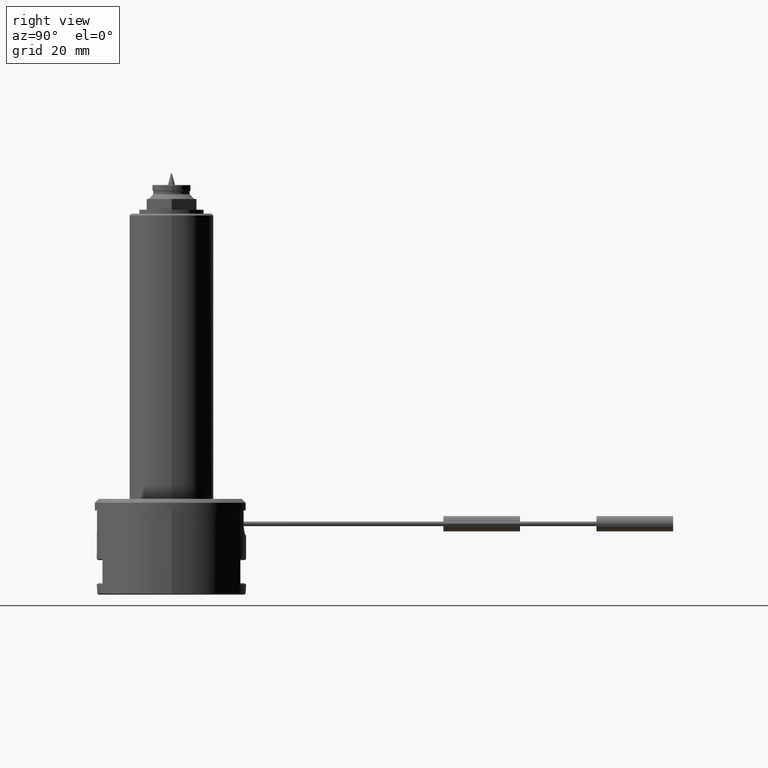
[diagram: clean part render]
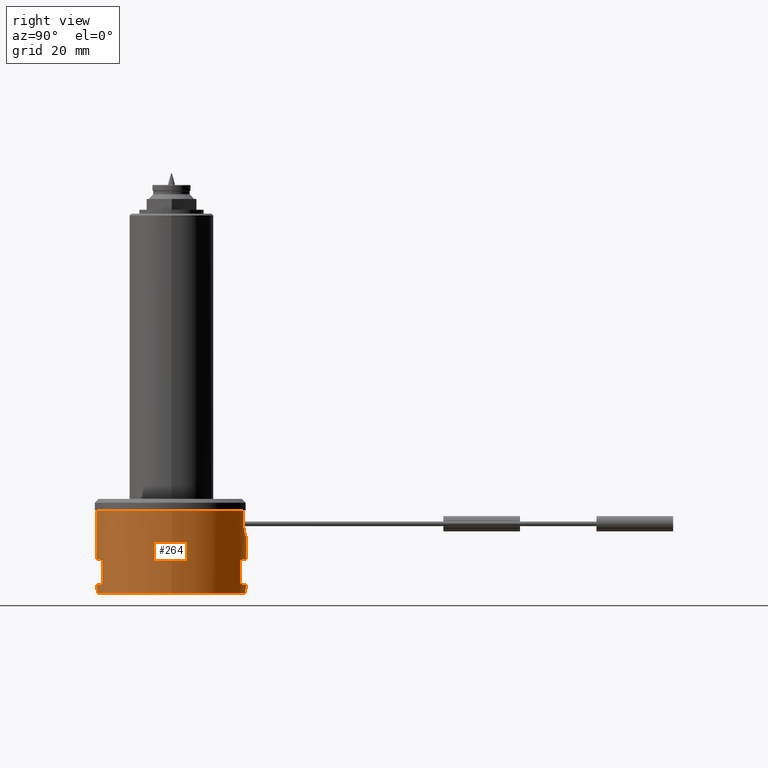
[diagram: same view with one face highlighted and labeled with its STEP entity id]
A machine part, right view. The second image highlights one B-rep face of the part: STEP entity #264.
In plain terms, the highlighted cylindrical surface (bore or boss wall) has radius 19.5 mm, axis along (0, 0, 1).
Its self-contained STEP definition (entity closure, byte-faithful):
#47=CYLINDRICAL_SURFACE('',#1219,19.5);
#114=LINE('',#2086,#158);
#115=LINE('',#2098,#159);
#117=LINE('',#2117,#161);
#119=LINE('',#2132,#163);
#122=LINE('',#2156,#166);
#123=LINE('',#2191,#167);
#158=VECTOR('',#1455,1.);
#159=VECTOR('',#1456,1.);
#161=VECTOR('',#1468,1.);
#163=VECTOR('',#1470,1.);
#166=VECTOR('',#1487,1.);
#167=VECTOR('',#1488,1.);
#264=ADVANCED_FACE('',(#385,#386,#387,#388),#47,.T.);
#339=B_SPLINE_CURVE_WITH_KNOTS('',3,(#2158,#2159,#2160,#2161,#2162,#2163,
#2164,#2165,#2166,#2167,#2168,#2169,#2170,#2171,#2172,#2173),
 .UNSPECIFIED.,.F.,.F.,(4,3,3,3,3,4),(0.,0.208859270447399,0.417456296238441,
0.630055906062743,0.847987775070674,1.),.UNSPECIFIED.);
#340=B_SPLINE_CURVE_WITH_KNOTS('',3,(#2174,#2175,#2176,#2177,#2178,#2179,
#2180,#2181,#2182,#2183,#2184,#2185,#2186,#2187,#2188,#2189),
 .UNSPECIFIED.,.F.,.F.,(4,3,3,3,3,4),(0.,0.215976202929395,0.431772849622374,
0.65007420206776,0.867184707585039,1.),.UNSPECIFIED.);
#385=FACE_BOUND('',#473,.T.);
#386=FACE_BOUND('',#474,.T.);
#387=FACE_BOUND('',#475,.T.);
#388=FACE_BOUND('',#476,.T.);
#473=EDGE_LOOP('',(#673));
#474=EDGE_LOOP('',(#674,#675,#676,#677,#678,#679));
#475=EDGE_LOOP('',(#680,#681,#682,#683));
#476=EDGE_LOOP('',(#684,#685,#686,#687));
#673=ORIENTED_EDGE('',*,*,#1024,.T.);
#674=ORIENTED_EDGE('',*,*,#1025,.F.);
#675=ORIENTED_EDGE('',*,*,#1026,.T.);
#676=ORIENTED_EDGE('',*,*,#1027,.T.);
#677=ORIENTED_EDGE('',*,*,#1021,.T.);
#678=ORIENTED_EDGE('',*,*,#1028,.T.);
#679=ORIENTED_EDGE('',*,*,#1029,.T.);
#680=ORIENTED_EDGE('',*,*,#1030,.T.);
#681=ORIENTED_EDGE('',*,*,#1017,.T.);
#682=ORIENTED_EDGE('',*,*,#1031,.T.);
#683=ORIENTED_EDGE('',*,*,#1013,.T.);
#684=ORIENTED_EDGE('',*,*,#1007,.F.);
#685=ORIENTED_EDGE('',*,*,#1032,.T.);
#686=ORIENTED_EDGE('',*,*,#1004,.F.);
#687=ORIENTED_EDGE('',*,*,#1033,.T.);
#880=VERTEX_POINT('',#2087);
#881=VERTEX_POINT('',#2088);
#882=VERTEX_POINT('',#2097);
#883=VERTEX_POINT('',#2099);
#887=VERTEX_POINT('',#2118);
#888=VERTEX_POINT('',#2119);
#891=VERTEX_POINT('',#2131);
#892=VERTEX_POINT('',#2133);
#893=VERTEX_POINT('',#2146);
#894=VERTEX_POINT('',#2147);
#895=VERTEX_POINT('',#2152);
#896=VERTEX_POINT('',#2154);
#897=VERTEX_POINT('',#2155);
#898=VERTEX_POINT('',#2157);
#899=VERTEX_POINT('',#2190);
#1004=EDGE_CURVE('',#880,#881,#114,.T.);
#1007=EDGE_CURVE('',#882,#883,#115,.T.);
#1013=EDGE_CURVE('',#887,#888,#117,.T.);
#1017=EDGE_CURVE('',#892,#891,#119,.T.);
#1021=EDGE_CURVE('',#893,#894,#1105,.T.);
#1024=EDGE_CURVE('',#895,#895,#1106,.T.);
#1025=EDGE_CURVE('',#896,#897,#1107,.T.);
#1026=EDGE_CURVE('',#896,#898,#122,.T.);
#1027=EDGE_CURVE('',#898,#893,#339,.T.);
#1028=EDGE_CURVE('',#894,#899,#340,.T.);
#1029=EDGE_CURVE('',#899,#897,#123,.T.);
#1030=EDGE_CURVE('',#888,#892,#1108,.T.);
#1031=EDGE_CURVE('',#891,#887,#1109,.T.);
#1032=EDGE_CURVE('',#882,#881,#1110,.T.);
#1033=EDGE_CURVE('',#880,#883,#1111,.T.);
#1105=CIRCLE('',#1211,19.5);
#1106=CIRCLE('',#1213,19.5);
#1107=CIRCLE('',#1214,19.5000000000001);
#1108=CIRCLE('',#1215,19.5);
#1109=CIRCLE('',#1216,19.5);
#1110=CIRCLE('',#1217,19.5);
#1111=CIRCLE('',#1218,19.5);
#1211=AXIS2_PLACEMENT_3D('',#2145,#1477,#1478);
#1213=AXIS2_PLACEMENT_3D('',#2151,#1483,#1484);
#1214=AXIS2_PLACEMENT_3D('',#2153,#1485,#1486);
#1215=AXIS2_PLACEMENT_3D('',#2192,#1489,#1490);
#1216=AXIS2_PLACEMENT_3D('',#2193,#1491,#1492);
#1217=AXIS2_PLACEMENT_3D('',#2194,#1493,#1494);
#1218=AXIS2_PLACEMENT_3D('',#2195,#1495,#1496);
#1219=AXIS2_PLACEMENT_3D('',#2196,#1497,#1498);
#1455=DIRECTION('',(0.,0.,1.));
#1456=DIRECTION('',(0.,0.,-1.));
#1468=DIRECTION('',(0.,0.,1.));
#1470=DIRECTION('',(0.,0.,-1.));
#1477=DIRECTION('',(0.,0.,-1.));
#1478=DIRECTION('',(-1.,0.,0.));
#1483=DIRECTION('',(0.,0.,1.));
#1484=DIRECTION('',(1.,0.,0.));
#1485=DIRECTION('',(0.,0.,1.));
#1486=DIRECTION('',(1.,0.,0.));
#1487=DIRECTION('',(0.,0.,-1.));
#1488=DIRECTION('',(0.,0.,1.));
#1489=DIRECTION('',(0.,0.,1.));
#1490=DIRECTION('',(1.,0.,0.));
#1491=DIRECTION('',(0.,0.,-1.));
#1492=DIRECTION('',(-1.,0.,0.));
#1493=DIRECTION('',(0.,0.,1.));
#1494=DIRECTION('',(-1.,0.,0.));
#1495=DIRECTION('',(0.,0.,-1.));
#1496=DIRECTION('',(1.,0.,0.));
#1497=DIRECTION('',(0.,0.,1.));
#1498=DIRECTION('',(1.,0.,0.));
#2086=CARTESIAN_POINT('',(-7.50000000000002,18.,0.));
#2087=CARTESIAN_POINT('',(-7.50000000000002,18.,2.69999999999999));
#2088=CARTESIAN_POINT('',(-7.50000000000002,18.,9.29999999998456));
#2097=CARTESIAN_POINT('',(7.50000000000002,18.,9.29999999998456));
#2098=CARTESIAN_POINT('',(7.50000000000002,18.,0.));
#2099=CARTESIAN_POINT('',(7.50000000000002,18.,2.69999999999999));
#2117=CARTESIAN_POINT('',(-7.50000000000002,-18.,0.));
#2118=CARTESIAN_POINT('',(-7.50000000000002,-18.,2.69999999999999));
#2119=CARTESIAN_POINT('',(-7.50000000000002,-18.,9.29999999998456));
#2131=CARTESIAN_POINT('',(7.50000000000002,-18.,2.69999999999999));
#2132=CARTESIAN_POINT('',(7.50000000000002,-18.,0.));
#2133=CARTESIAN_POINT('',(7.50000000000002,-18.,9.29999999998456));
#2145=CARTESIAN_POINT('',(0.,0.,15.5));
#2146=CARTESIAN_POINT('',(-2.,19.3971647412708,15.5));
#2147=CARTESIAN_POINT('',(2.,19.3971647412708,15.5));
#2151=CARTESIAN_POINT('',(0.,0.,0.29999999999999));
#2152=CARTESIAN_POINT('',(19.5,0.,0.29999999999999));
#2153=CARTESIAN_POINT('',(0.,0.,22.));
#2154=CARTESIAN_POINT('',(-5.,18.8480768249708,22.));
#2155=CARTESIAN_POINT('',(5.,18.8480768249708,22.));
#2156=CARTESIAN_POINT('',(-5.,18.8480768249708,0.));
#2157=CARTESIAN_POINT('',(-5.,18.8480768249708,18.5));
#2158=CARTESIAN_POINT('',(-5.,18.8480768249708,18.5));
#2159=CARTESIAN_POINT('',(-5.,18.8480768249708,18.1712240801533));
#2160=CARTESIAN_POINT('',(-4.94431953548575,18.8630780703131,17.8379299438462));
#2161=CARTESIAN_POINT('',(-4.83815628129102,18.8902684945928,17.5279563163272));
#2162=CARTESIAN_POINT('',(-4.73206839705938,18.9174396151944,17.2182027527186));
#2163=CARTESIAN_POINT('',(-4.57289213055614,18.9573288779685,16.9232723225049));
#2164=CARTESIAN_POINT('',(-4.37398378364309,19.0031120046278,16.6658241646452));
#2165=CARTESIAN_POINT('',(-4.17127404465591,19.049770105201,16.4034558442987));
#2166=CARTESIAN_POINT('',(-3.92191579445692,19.1036067398235,16.1728608493464));
#2167=CARTESIAN_POINT('',(-3.64542788517535,19.1562223711771,15.9915010315555));
#2168=CARTESIAN_POINT('',(-3.36220663328017,19.210119357197,15.8057245367652));
#2169=CARTESIAN_POINT('',(-3.04260585593299,19.264051176149,15.6665471574642));
#2170=CARTESIAN_POINT('',(-2.71250280399398,19.3104202061562,15.5858380699933));
#2171=CARTESIAN_POINT('',(-2.48058686127955,19.3429970552453,15.5291354009434));
#2172=CARTESIAN_POINT('',(-2.23968870841728,19.3724509532905,15.5));
#2173=CARTESIAN_POINT('',(-2.,19.3971647412708,15.5));
#2174=CARTESIAN_POINT('',(2.,19.3971647412708,15.5));
#2175=CARTESIAN_POINT('',(2.33818486907352,19.3622952256912,15.5));
#2176=CARTESIAN_POINT('',(2.68002074798442,19.3176233036949,15.558789140847));
#2177=CARTESIAN_POINT('',(2.99726822234027,19.2682740068577,15.670608529611));
#2178=CARTESIAN_POINT('',(3.31435435932037,19.2189498067879,15.7823710522114));
#2179=CARTESIAN_POINT('',(3.61568525744173,19.1637201320182,15.9500573681033));
#2180=CARTESIAN_POINT('',(3.87746398049628,19.1106062980732,16.1601006427756));
#2181=CARTESIAN_POINT('',(4.14216329357637,19.0568998883381,16.3724873099353));
#2182=CARTESIAN_POINT('',(4.37381764980178,19.004042380216,16.6342027021801));
#2183=CARTESIAN_POINT('',(4.55286851589345,18.9610492398756,16.9242898932355));
#2184=CARTESIAN_POINT('',(4.73086724917875,18.9183087344114,17.2126724834862));
#2185=CARTESIAN_POINT('',(4.86180379042969,18.8843408016981,17.5375010705628));
#2186=CARTESIAN_POINT('',(4.93331544810629,18.8656406912004,17.8709845137829));
#2187=CARTESIAN_POINT('',(4.97747479356462,18.854093138446,18.0769147222586));
#2188=CARTESIAN_POINT('',(5.,18.8480768249708,18.2890719446617));
#2189=CARTESIAN_POINT('',(5.,18.8480768249708,18.5));
#2190=CARTESIAN_POINT('',(5.,18.8480768249708,18.5));
#2191=CARTESIAN_POINT('',(5.,18.8480768249708,0.));
#2192=CARTESIAN_POINT('',(0.,0.,9.29999999998456));
#2193=CARTESIAN_POINT('',(0.,0.,2.69999999999999));
#2194=CARTESIAN_POINT('',(0.,0.,9.29999999998456));
#2195=CARTESIAN_POINT('',(0.,0.,2.69999999999999));
#2196=CARTESIAN_POINT('',(0.,0.,0.));